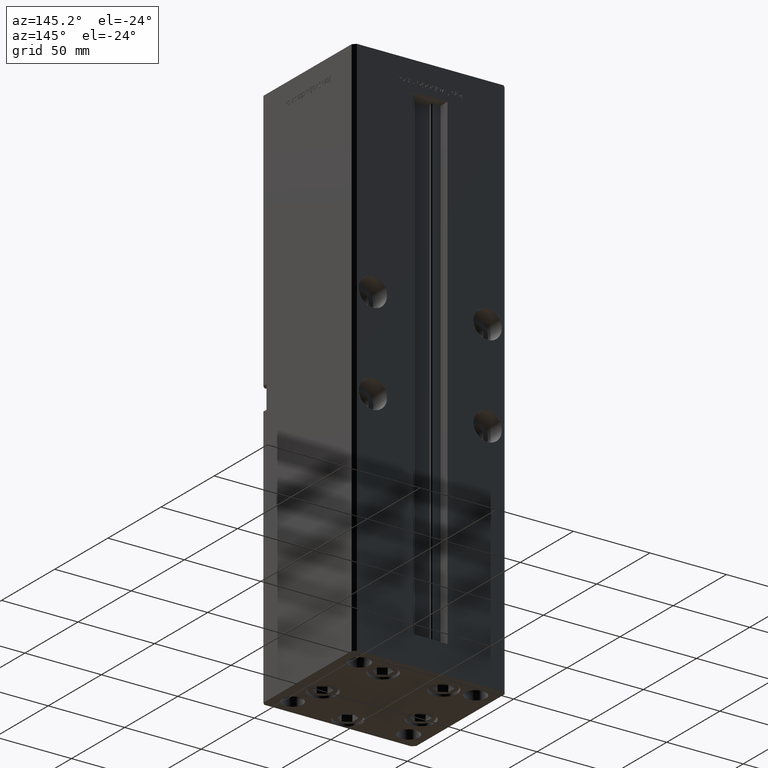
[diagram: clean part render]
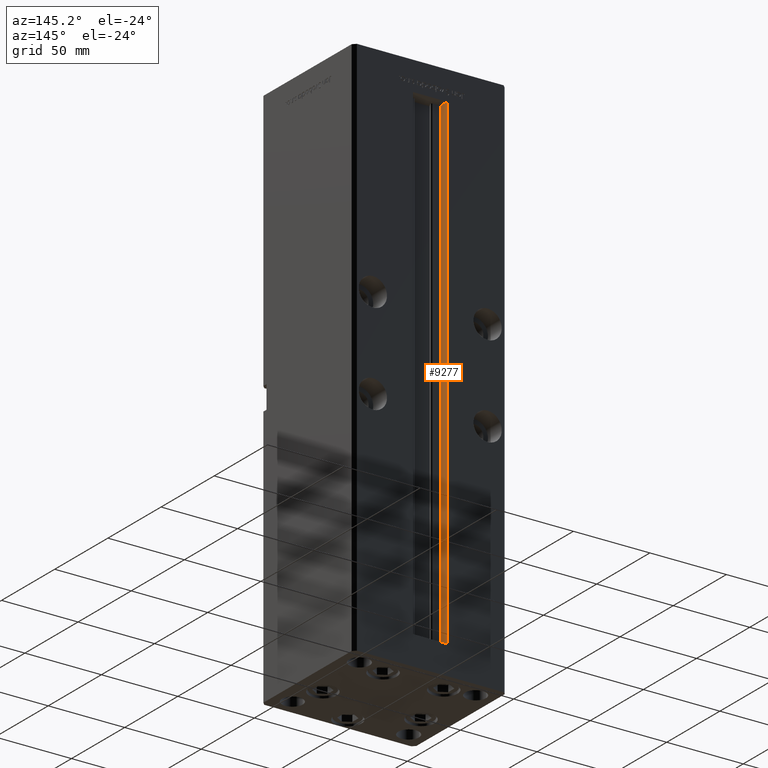
[diagram: same view with one face highlighted and labeled with its STEP entity id]
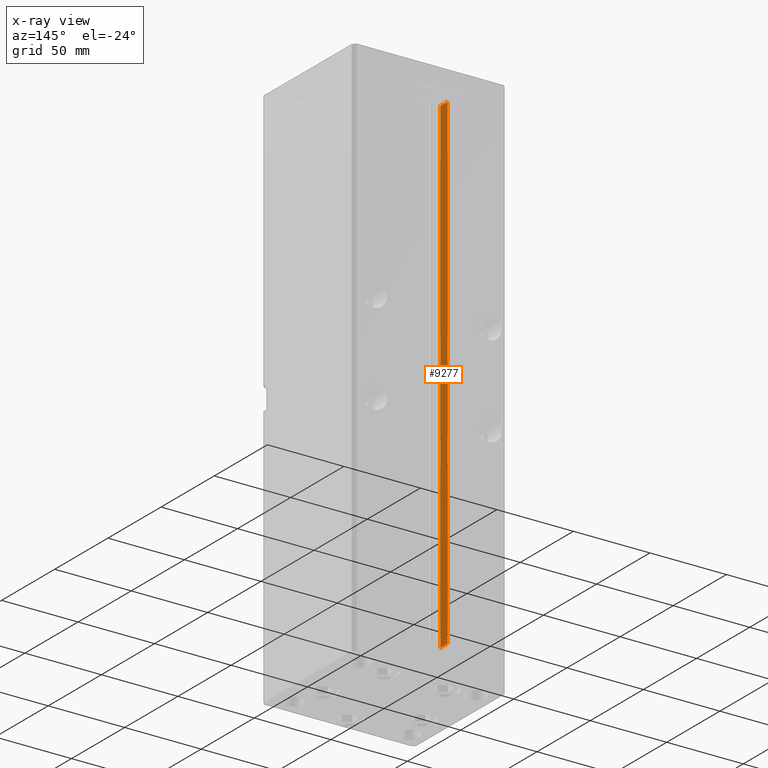
[diagram: x-ray of the same camera — body ghosted, the highlighted face saturated]
A machine part, auxiliary view. The second image highlights one B-rep face of the part: STEP entity #9277.
The next image is the same camera in x-ray: the body ghosted, the highlighted face saturated — about 0% of this face is hidden behind the body in this view.
In plain terms, the highlighted planar face has unit normal (-1, 0, 0).
Its self-contained STEP definition (entity closure, byte-faithful):
#2442 = DIRECTION ( 'NONE',  ( 0.000000000000000000, 0.000000000000000000, 1.000000000000000000 ) ) ;
#4690 = EDGE_CURVE ( 'NONE', #47904, #31367, #50139, .T. ) ;
#7343 = ORIENTED_EDGE ( 'NONE', *, *, #4690, .F. ) ;
#9277 = ADVANCED_FACE ( 'NONE', ( #34969 ), #39261, .F. ) ;
#9597 = DIRECTION ( 'NONE',  ( 0.000000000000000000, 1.000000000000000000, 0.000000000000000000 ) ) ;
#11806 = EDGE_CURVE ( 'NONE', #41168, #47904, #33014, .T. ) ;
#12495 = VECTOR ( 'NONE', #52649, 1000.000000000000000 ) ;
#12549 = CARTESIAN_POINT ( 'NONE',  ( -11.24999999999999645, 37.00000000000000000, 0.000000000000000000 ) ) ;
#16334 = VECTOR ( 'NONE', #41026, 1000.000000000000000 ) ;
#16364 = LINE ( 'NONE', #23627, #12495 ) ;
#17123 = DIRECTION ( 'NONE',  ( -0.000000000000000000, -1.000000000000000000, -0.000000000000000000 ) ) ;
#20337 = ORIENTED_EDGE ( 'NONE', *, *, #35422, .F. ) ;
#22695 = EDGE_CURVE ( 'NONE', #41168, #29653, #16364, .T. ) ;
#22719 = CARTESIAN_POINT ( 'NONE',  ( -11.24999999999999645, 37.00000000000000000, 0.000000000000000000 ) ) ;
#23387 = DIRECTION ( 'NONE',  ( -1.000000000000000000, 0.000000000000000000, 0.000000000000000000 ) ) ;
#23494 = ORIENTED_EDGE ( 'NONE', *, *, #11806, .F. ) ;
#23627 = CARTESIAN_POINT ( 'NONE',  ( -11.24999999999999645, 43.50000000000000000, 0.000000000000000000 ) ) ;
#25981 = CARTESIAN_POINT ( 'NONE',  ( -11.24999999999999645, 37.00000000000000000, 0.000000000000000000 ) ) ;
#28402 = CARTESIAN_POINT ( 'NONE',  ( -11.24999999999999645, 43.50000000000000000, 0.000000000000000000 ) ) ;
#29653 = VERTEX_POINT ( 'NONE', #30449 ) ;
#30449 = CARTESIAN_POINT ( 'NONE',  ( -11.24999999999999645, 43.50000000000000000, 318.5000000000000000 ) ) ;
#31189 = CARTESIAN_POINT ( 'NONE',  ( -11.24999999999999645, 37.00000000000000000, 0.000000000000000000 ) ) ;
#31367 = VERTEX_POINT ( 'NONE', #33860 ) ;
#31905 = EDGE_LOOP ( 'NONE', ( #7343, #23494, #41518, #20337 ) ) ;
#33014 = LINE ( 'NONE', #25981, #44862 ) ;
#33860 = CARTESIAN_POINT ( 'NONE',  ( -11.24999999999999645, 37.00000000000000000, 318.5000000000000000 ) ) ;
#34969 = FACE_OUTER_BOUND ( 'NONE', #31905, .T. ) ;
#35422 = EDGE_CURVE ( 'NONE', #31367, #29653, #49640, .T. ) ;
#39261 = PLANE ( 'NONE',  #49974 ) ;
#41026 = DIRECTION ( 'NONE',  ( -0.000000000000000000, -0.000000000000000000, 1.000000000000000000 ) ) ;
#41168 = VERTEX_POINT ( 'NONE', #28402 ) ;
#41518 = ORIENTED_EDGE ( 'NONE', *, *, #22695, .T. ) ;
#44862 = VECTOR ( 'NONE', #17123, 1000.000000000000000 ) ;
#45071 = CARTESIAN_POINT ( 'NONE',  ( -11.24999999999999645, 0.000000000000000000, 318.5000000000000000 ) ) ;
#47904 = VERTEX_POINT ( 'NONE', #22719 ) ;
#49640 = LINE ( 'NONE', #45071, #50997 ) ;
#49974 = AXIS2_PLACEMENT_3D ( 'NONE', #31189, #23387, #2442 ) ;
#50139 = LINE ( 'NONE', #12549, #16334 ) ;
#50997 = VECTOR ( 'NONE', #9597, 1000.000000000000000 ) ;
#52649 = DIRECTION ( 'NONE',  ( -0.000000000000000000, -0.000000000000000000, 1.000000000000000000 ) ) ;